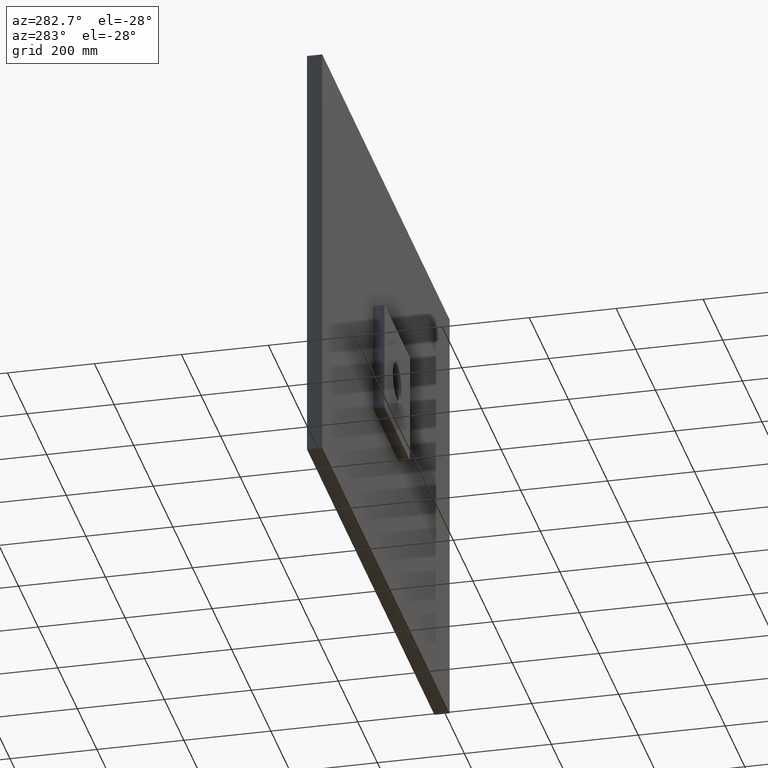
[diagram: clean part render]
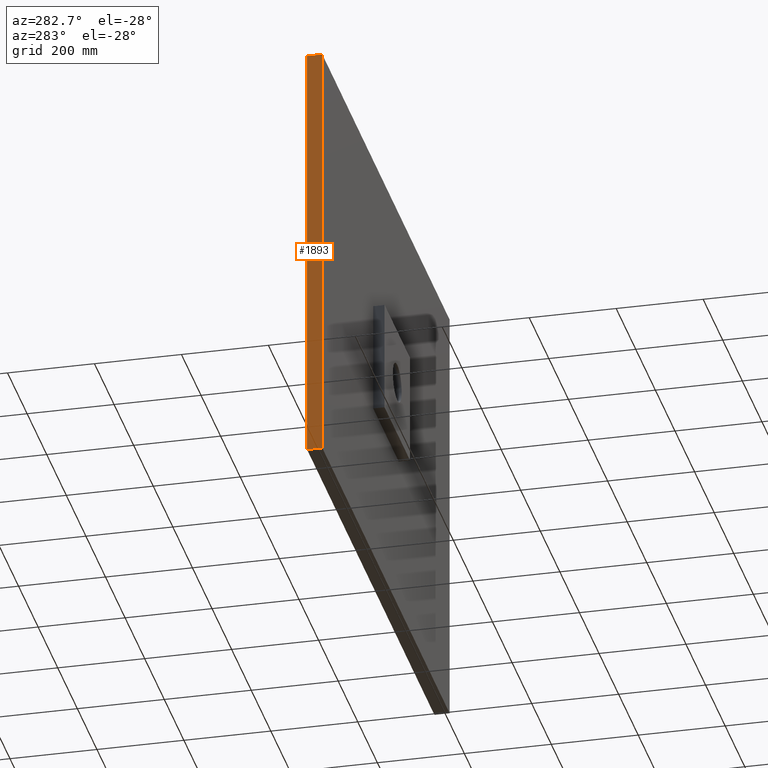
[diagram: same view with one face highlighted and labeled with its STEP entity id]
A machine part, auxiliary view. The second image highlights one B-rep face of the part: STEP entity #1893.
In plain terms, the highlighted planar face has unit normal (1, 0, -0).
Its self-contained STEP definition (entity closure, byte-faithful):
#5 = VECTOR ( 'NONE', #2438, 1000.000000000000000 ) ;
#13 = FACE_OUTER_BOUND ( 'NONE', #1183, .T. ) ;
#40 = LINE ( 'NONE', #2599, #5 ) ;
#312 = DIRECTION ( 'NONE',  ( 1.110223024625156500E-016, 0.0000000000000000000, 1.000000000000000000 ) ) ;
#317 = CARTESIAN_POINT ( 'NONE',  ( -650.0000000000000000, 0.0000000000000000000, -499.9999999999997700 ) ) ;
#327 = CARTESIAN_POINT ( 'NONE',  ( -650.0000000000000000, 35.00000000000000000, -499.9999999999997700 ) ) ;
#369 = VECTOR ( 'NONE', #2072, 1000.000000000000000 ) ;
#481 = ORIENTED_EDGE ( 'NONE', *, *, #2946, .F. ) ;
#542 = LINE ( 'NONE', #2976, #369 ) ;
#578 = CARTESIAN_POINT ( 'NONE',  ( -649.9999999999998900, 0.0000000000000000000, 500.0000000000002300 ) ) ;
#727 = DIRECTION ( 'NONE',  ( -1.110223024625156500E-016, 0.0000000000000000000, -1.000000000000000000 ) ) ;
#897 = VECTOR ( 'NONE', #2073, 1000.000000000000000 ) ;
#1019 = ORIENTED_EDGE ( 'NONE', *, *, #2214, .F. ) ;
#1047 = ORIENTED_EDGE ( 'NONE', *, *, #2737, .T. ) ;
#1164 = VERTEX_POINT ( 'NONE', #1874 ) ;
#1183 = EDGE_LOOP ( 'NONE', ( #2114, #481, #1019, #1047 ) ) ;
#1430 = VECTOR ( 'NONE', #312, 1000.000000000000000 ) ;
#1817 = LINE ( 'NONE', #2082, #897 ) ;
#1874 = CARTESIAN_POINT ( 'NONE',  ( -649.9999999999998900, 35.00000000000000000, 500.0000000000002300 ) ) ;
#1893 = ADVANCED_FACE ( 'NONE', ( #13 ), #2518, .F. ) ;
#2072 = DIRECTION ( 'NONE',  ( 1.110223024625156500E-016, 0.0000000000000000000, 1.000000000000000000 ) ) ;
#2073 = DIRECTION ( 'NONE',  ( -0.0000000000000000000, -1.000000000000000000, -0.0000000000000000000 ) ) ;
#2082 = CARTESIAN_POINT ( 'NONE',  ( -649.9999999999998900, 35.00000000000000000, 500.0000000000002300 ) ) ;
#2114 = ORIENTED_EDGE ( 'NONE', *, *, #3162, .T. ) ;
#2154 = LINE ( 'NONE', #317, #1430 ) ;
#2214 = EDGE_CURVE ( 'NONE', #3219, #1164, #542, .T. ) ;
#2361 = VERTEX_POINT ( 'NONE', #578 ) ;
#2438 = DIRECTION ( 'NONE',  ( -0.0000000000000000000, -1.000000000000000000, -0.0000000000000000000 ) ) ;
#2455 = DIRECTION ( 'NONE',  ( 1.000000000000000000, 0.0000000000000000000, -1.110223024625156500E-016 ) ) ;
#2518 = PLANE ( 'NONE',  #2560 ) ;
#2560 = AXIS2_PLACEMENT_3D ( 'NONE', #2889, #2455, #727 ) ;
#2599 = CARTESIAN_POINT ( 'NONE',  ( -650.0000000000000000, 35.00000000000000000, -499.9999999999997700 ) ) ;
#2737 = EDGE_CURVE ( 'NONE', #3219, #2823, #40, .T. ) ;
#2823 = VERTEX_POINT ( 'NONE', #3250 ) ;
#2889 = CARTESIAN_POINT ( 'NONE',  ( -650.0000000000000000, 35.00000000000000000, -499.9999999999997700 ) ) ;
#2946 = EDGE_CURVE ( 'NONE', #1164, #2361, #1817, .T. ) ;
#2976 = CARTESIAN_POINT ( 'NONE',  ( -650.0000000000000000, 35.00000000000000000, -499.9999999999997700 ) ) ;
#3162 = EDGE_CURVE ( 'NONE', #2823, #2361, #2154, .T. ) ;
#3219 = VERTEX_POINT ( 'NONE', #327 ) ;
#3250 = CARTESIAN_POINT ( 'NONE',  ( -650.0000000000000000, 0.0000000000000000000, -499.9999999999997700 ) ) ;